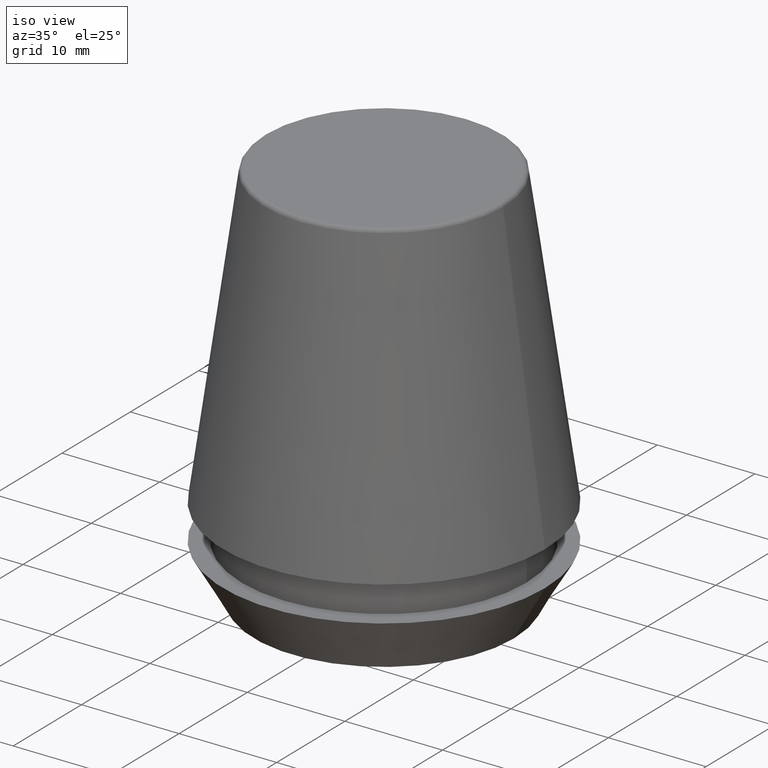
[diagram: clean part render]
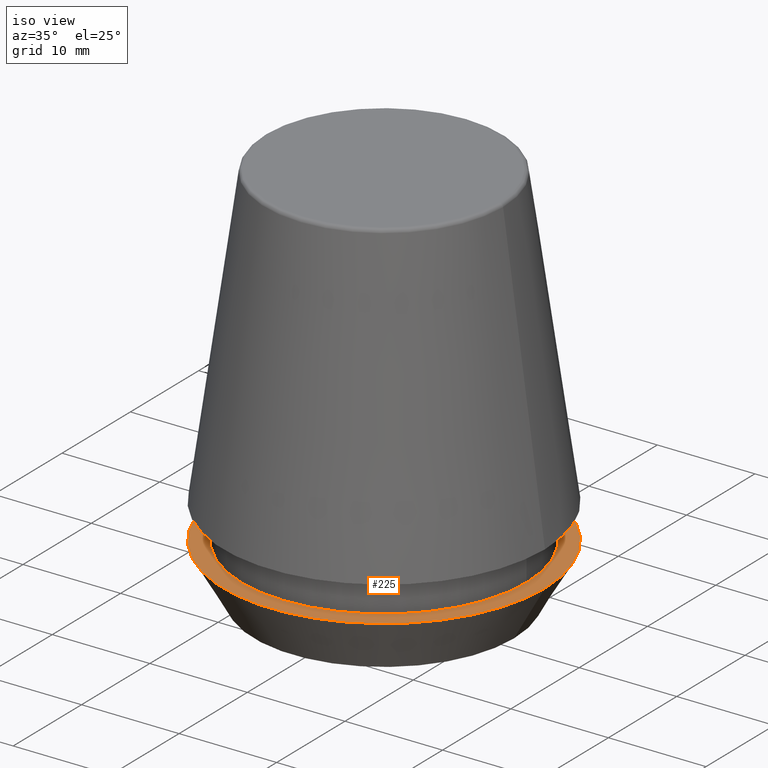
[diagram: same view with one face highlighted and labeled with its STEP entity id]
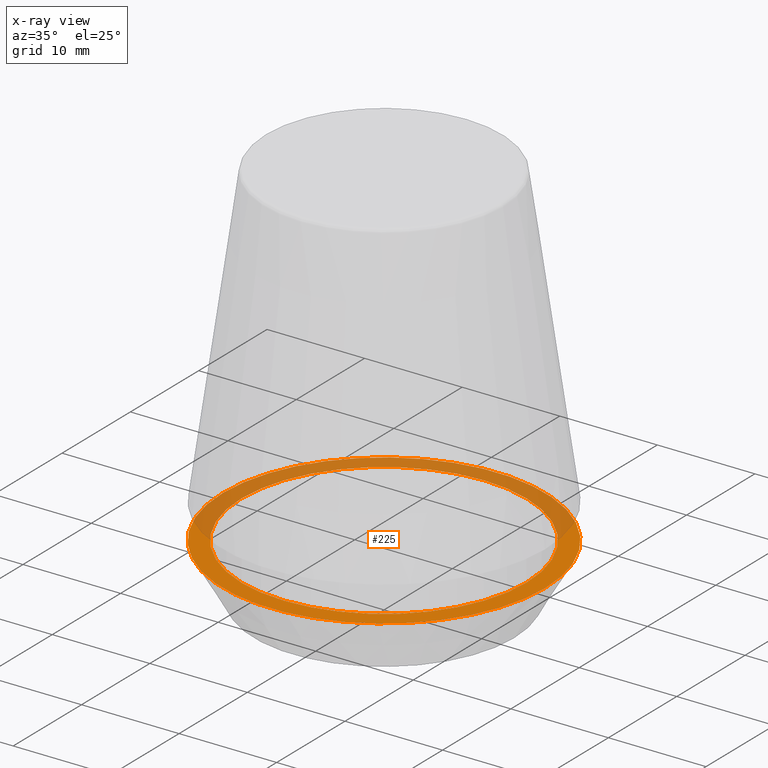
[diagram: x-ray of the same camera — body ghosted, the highlighted face saturated]
A machine part, iso view. The second image highlights one B-rep face of the part: STEP entity #225.
The next image is the same camera in x-ray: the body ghosted, the highlighted face saturated — about 46% of this face is hidden behind the body in this view.
In plain terms, the highlighted planar face has unit normal (0, 0, -1).
Its self-contained STEP definition (entity closure, byte-faithful):
#6 = CARTESIAN_POINT ( 'NONE',  ( 0.0000000000000000000, 0.0000000000000000000, 5.500000000000005300 ) ) ;
#9 = CARTESIAN_POINT ( 'NONE',  ( 0.0000000000000000000, 0.0000000000000000000, 5.500000000000005300 ) ) ;
#12 = CIRCLE ( 'NONE', #369, 16.50000000000000000 ) ;
#17 = EDGE_CURVE ( 'NONE', #118, #234, #12, .T. ) ;
#22 = DIRECTION ( 'NONE',  ( -0.0000000000000000000, -0.0000000000000000000, 1.000000000000000000 ) ) ;
#27 = DIRECTION ( 'NONE',  ( -1.000000000000000000, 0.0000000000000000000, -0.0000000000000000000 ) ) ;
#40 = DIRECTION ( 'NONE',  ( -0.0000000000000000000, -0.0000000000000000000, 1.000000000000000000 ) ) ;
#46 = CARTESIAN_POINT ( 'NONE',  ( 14.60000000000000000, 0.0000000000000000000, 5.500000000000005300 ) ) ;
#49 = CIRCLE ( 'NONE', #67, 14.60000000000000000 ) ;
#50 = CIRCLE ( 'NONE', #133, 14.60000000000000000 ) ;
#51 = EDGE_LOOP ( 'NONE', ( #206, #190 ) ) ;
#54 = CARTESIAN_POINT ( 'NONE',  ( 0.0000000000000000000, 16.50000000000000000, 5.500000000000002700 ) ) ;
#67 = AXIS2_PLACEMENT_3D ( 'NONE', #131, #99, #386 ) ;
#93 = ORIENTED_EDGE ( 'NONE', *, *, #235, .T. ) ;
#97 = CARTESIAN_POINT ( 'NONE',  ( -14.60000000000000000, 1.787984326755135800E-015, 5.500000000000005300 ) ) ;
#99 = DIRECTION ( 'NONE',  ( -0.0000000000000000000, -0.0000000000000000000, 1.000000000000000000 ) ) ;
#108 = ORIENTED_EDGE ( 'NONE', *, *, #17, .T. ) ;
#118 = VERTEX_POINT ( 'NONE', #355 ) ;
#120 = EDGE_CURVE ( 'NONE', #303, #375, #49, .T. ) ;
#125 = PLANE ( 'NONE',  #197 ) ;
#131 = CARTESIAN_POINT ( 'NONE',  ( 0.0000000000000000000, 0.0000000000000000000, 5.500000000000005300 ) ) ;
#133 = AXIS2_PLACEMENT_3D ( 'NONE', #9, #40, #227 ) ;
#161 = DIRECTION ( 'NONE',  ( -0.0000000000000000000, -0.0000000000000000000, 1.000000000000000000 ) ) ;
#190 = ORIENTED_EDGE ( 'NONE', *, *, #120, .F. ) ;
#197 = AXIS2_PLACEMENT_3D ( 'NONE', #54, #240, #27 ) ;
#206 = ORIENTED_EDGE ( 'NONE', *, *, #239, .F. ) ;
#225 = ADVANCED_FACE ( 'NONE', ( #348, #244 ), #125, .F. ) ;
#227 = DIRECTION ( 'NONE',  ( 1.000000000000000000, 0.0000000000000000000, 0.0000000000000000000 ) ) ;
#234 = VERTEX_POINT ( 'NONE', #266 ) ;
#235 = EDGE_CURVE ( 'NONE', #234, #118, #333, .T. ) ;
#239 = EDGE_CURVE ( 'NONE', #375, #303, #50, .T. ) ;
#240 = DIRECTION ( 'NONE',  ( 0.0000000000000000000, 0.0000000000000000000, -1.000000000000000000 ) ) ;
#244 = FACE_OUTER_BOUND ( 'NONE', #350, .T. ) ;
#266 = CARTESIAN_POINT ( 'NONE',  ( 16.50000000000000000, 0.0000000000000000000, 5.500000000000005300 ) ) ;
#272 = DIRECTION ( 'NONE',  ( 1.000000000000000000, 0.0000000000000000000, 0.0000000000000000000 ) ) ;
#303 = VERTEX_POINT ( 'NONE', #97 ) ;
#333 = CIRCLE ( 'NONE', #362, 16.50000000000000000 ) ;
#348 = FACE_BOUND ( 'NONE', #51, .T. ) ;
#350 = EDGE_LOOP ( 'NONE', ( #93, #108 ) ) ;
#355 = CARTESIAN_POINT ( 'NONE',  ( -16.50000000000000000, 2.020667218593133100E-015, 5.500000000000005300 ) ) ;
#362 = AXIS2_PLACEMENT_3D ( 'NONE', #373, #22, #376 ) ;
#369 = AXIS2_PLACEMENT_3D ( 'NONE', #6, #161, #272 ) ;
#373 = CARTESIAN_POINT ( 'NONE',  ( 0.0000000000000000000, 0.0000000000000000000, 5.500000000000005300 ) ) ;
#375 = VERTEX_POINT ( 'NONE', #46 ) ;
#376 = DIRECTION ( 'NONE',  ( 1.000000000000000000, 0.0000000000000000000, 0.0000000000000000000 ) ) ;
#386 = DIRECTION ( 'NONE',  ( 1.000000000000000000, 0.0000000000000000000, 0.0000000000000000000 ) ) ;